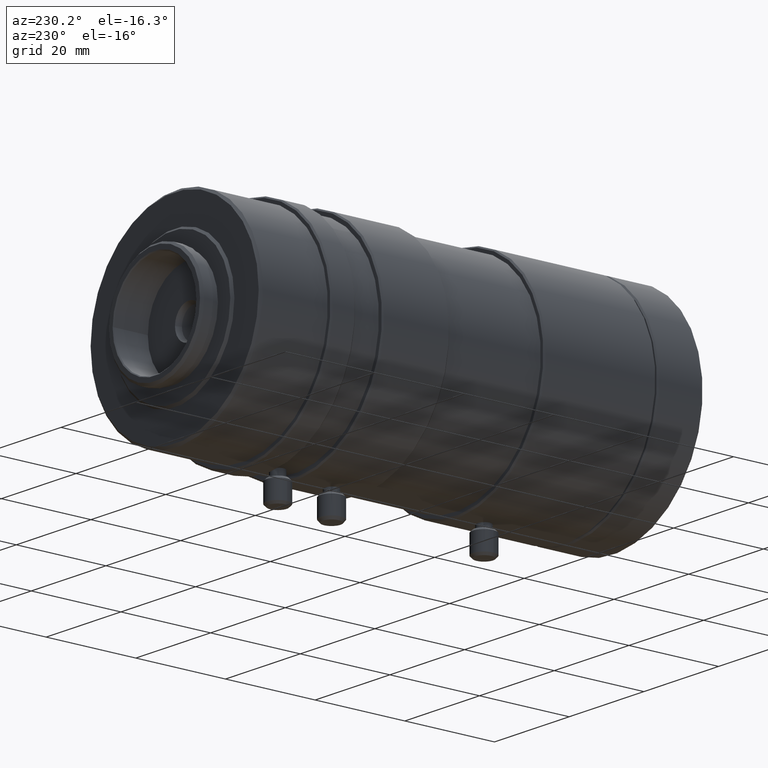
[diagram: clean part render]
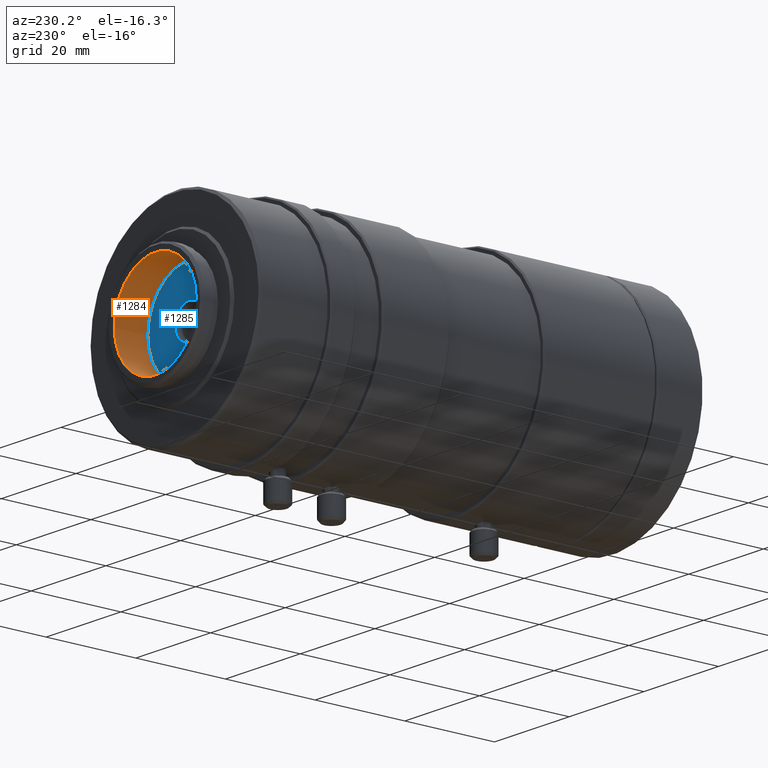
[diagram: same view with the hole feature highlighted: cylindrical wall and planar end face, labeled with their STEP entity ids]
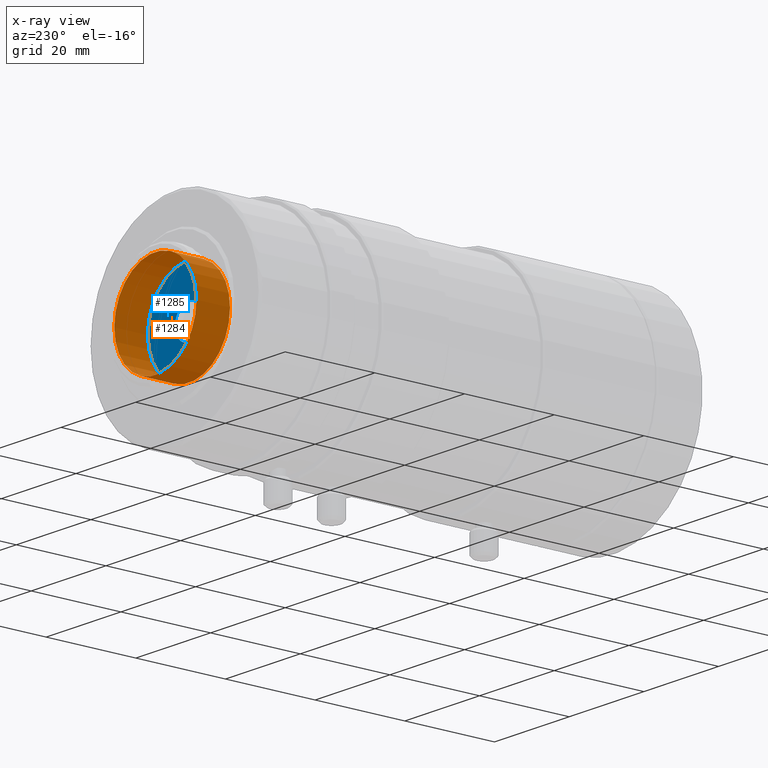
[diagram: x-ray of the same camera — body ghosted, the hole faces saturated]
A machine part, auxiliary view. The highlighted faces form one hole feature of diameter 22 mm: the cylindrical wall (entity #1284, orange) and its adjacent planar end face (entity #1285, blue) — they share a circular edge in the B-rep.
The next image is the same camera in x-ray (body ghosted, the hole faces saturated) — the bore reads through the body.
Wall:
#64=CYLINDRICAL_SURFACE('',#1423,11.);
#193=ORIENTED_EDGE('',*,*,#272,.T.);
#194=ORIENTED_EDGE('',*,*,#271,.F.);
#271=EDGE_CURVE('',#341,#341,#408,.T.);
#272=EDGE_CURVE('',#342,#342,#409,.T.);
#341=VERTEX_POINT('',#1938);
#342=VERTEX_POINT('',#1941);
#408=CIRCLE('',#1422,11.);
#409=CIRCLE('',#1424,11.);
#540=EDGE_LOOP('',(#193));
#541=EDGE_LOOP('',(#194));
#680=FACE_BOUND('',#540,.T.);
#681=FACE_BOUND('',#541,.T.);
#1284=ADVANCED_FACE('',(#680,#681),#64,.F.);
#1422=AXIS2_PLACEMENT_3D('',#1937,#1688,#1689);
#1423=AXIS2_PLACEMENT_3D('',#1939,#1690,#1691);
#1424=AXIS2_PLACEMENT_3D('',#1940,#1692,#1693);
#1688=DIRECTION('',(-6.12303176911189E-17,-1.,1.69202101686471E-17));
#1689=DIRECTION('',(1.,-6.12303176911189E-17,0.));
#1690=DIRECTION('',(-6.12303176911189E-17,-1.,1.69202101686471E-17));
#1691=DIRECTION('',(1.,-6.12303176911189E-17,0.));
#1692=DIRECTION('',(-6.12303176911189E-17,-1.,1.69202101686471E-17));
#1693=DIRECTION('',(1.,-6.12303176911189E-17,0.));
#1937=CARTESIAN_POINT('',(6.2640045655231E-15,102.302336517709,-1.7309770346233E-15));
#1938=CARTESIAN_POINT('',(11.,102.302336517709,-1.7309770346233E-15));
#1939=CARTESIAN_POINT('',(0.,0.,0.));
#1940=CARTESIAN_POINT('',(5.80567359861116E-15,94.8169765817374,-1.60432317131869E-15));
#1941=CARTESIAN_POINT('',(11.,94.8169765817374,-1.60432317131869E-15));
End face:
#44=PLANE('',#1425);
#195=ORIENTED_EDGE('',*,*,#273,.T.);
#196=ORIENTED_EDGE('',*,*,#272,.F.);
#272=EDGE_CURVE('',#342,#342,#409,.T.);
#273=EDGE_CURVE('',#343,#343,#410,.T.);
#342=VERTEX_POINT('',#1941);
#343=VERTEX_POINT('',#1944);
#409=CIRCLE('',#1424,11.);
#410=CIRCLE('',#1426,3.73676428111944);
#542=EDGE_LOOP('',(#195));
#543=EDGE_LOOP('',(#196));
#682=FACE_BOUND('',#542,.T.);
#683=FACE_BOUND('',#543,.T.);
#1285=ADVANCED_FACE('',(#682,#683),#44,.F.);
#1424=AXIS2_PLACEMENT_3D('',#1940,#1692,#1693);
#1425=AXIS2_PLACEMENT_3D('',#1942,#1694,#1695);
#1426=AXIS2_PLACEMENT_3D('',#1943,#1696,#1697);
#1692=DIRECTION('',(-6.12303176911189E-17,-1.,1.69202101686471E-17));
#1693=DIRECTION('',(1.,-6.12303176911189E-17,0.));
#1694=DIRECTION('',(-6.12303176911189E-17,-1.,1.69202101686471E-17));
#1695=DIRECTION('',(1.,-6.12303176911189E-17,0.));
#1696=DIRECTION('',(-6.12303176911189E-17,-1.,1.69202101686471E-17));
#1697=DIRECTION('',(1.,-6.12303176911189E-17,0.));
#1940=CARTESIAN_POINT('',(5.80567359861116E-15,94.8169765817374,-1.60432317131869E-15));
#1941=CARTESIAN_POINT('',(11.,94.8169765817374,-1.60432317131869E-15));
#1942=CARTESIAN_POINT('',(5.80567359861116E-15,94.8169765817374,3.73676428111944));
#1943=CARTESIAN_POINT('',(5.80567359861116E-15,94.8169765817374,-1.60432317131869E-15));
#1944=CARTESIAN_POINT('',(3.73676428111945,94.8169765817374,-1.60432317131869E-15));